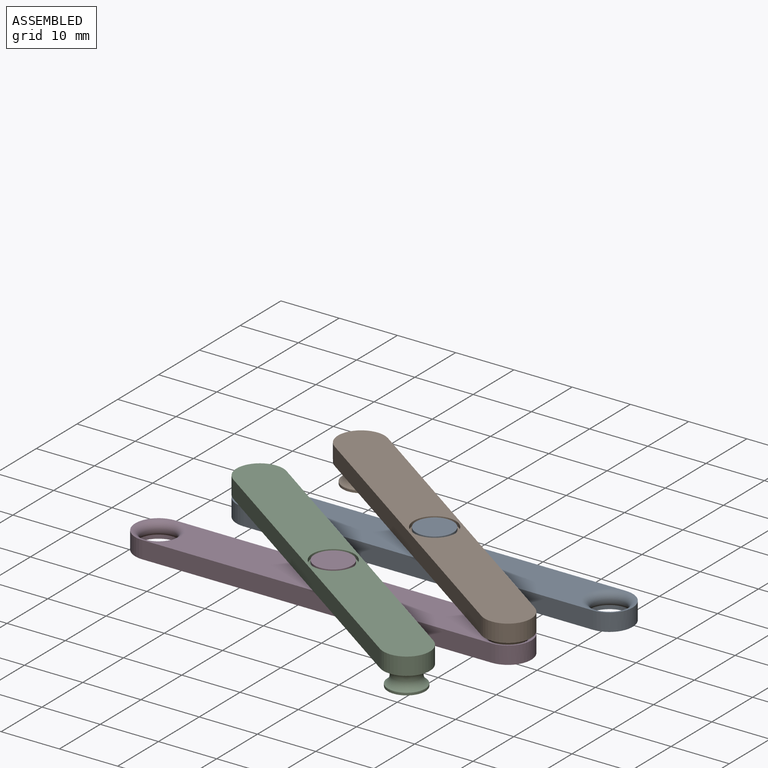
[diagram: assembled view]
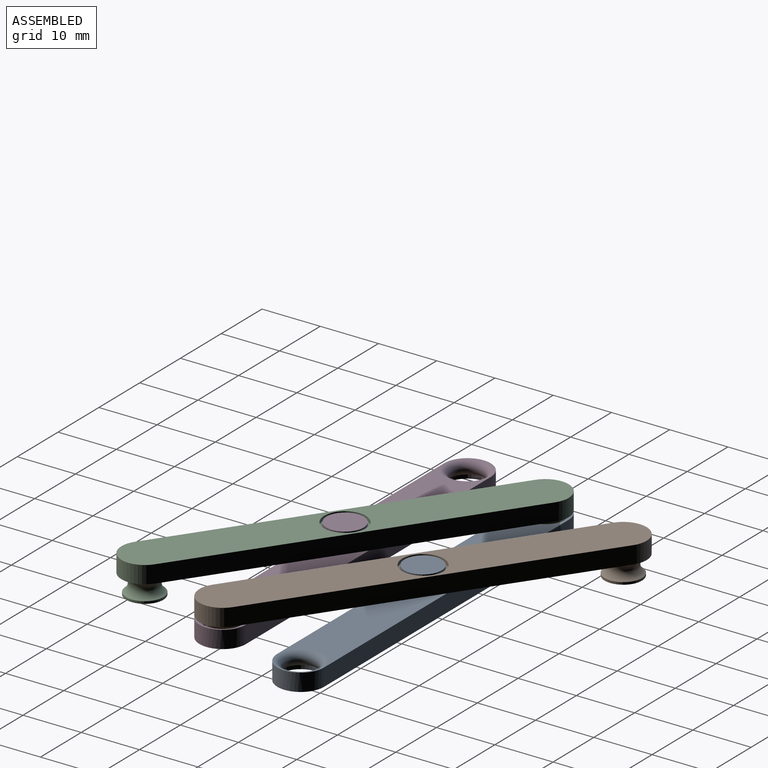
[diagram: assembled view, second angle]
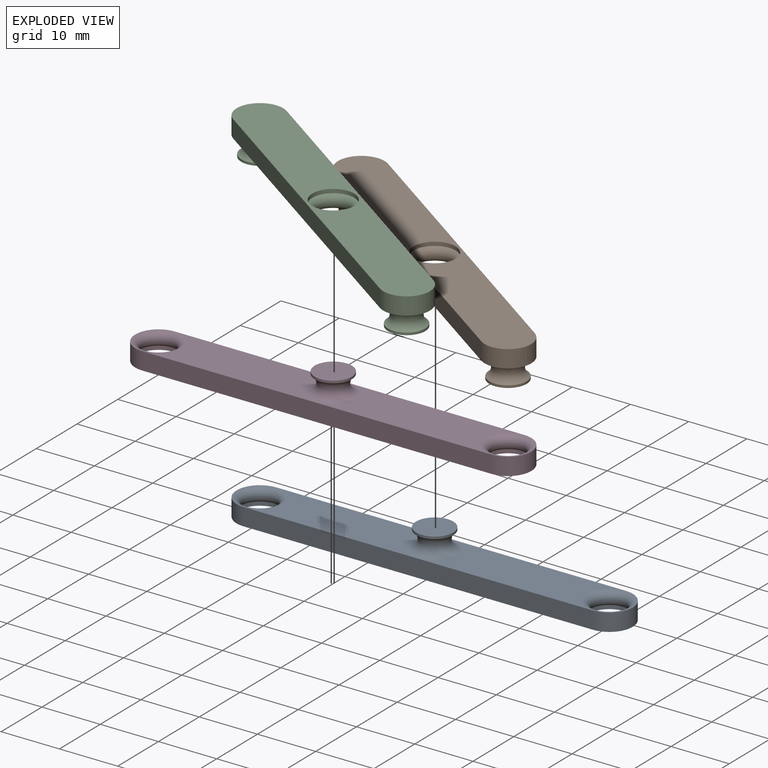
[diagram: exploded view]
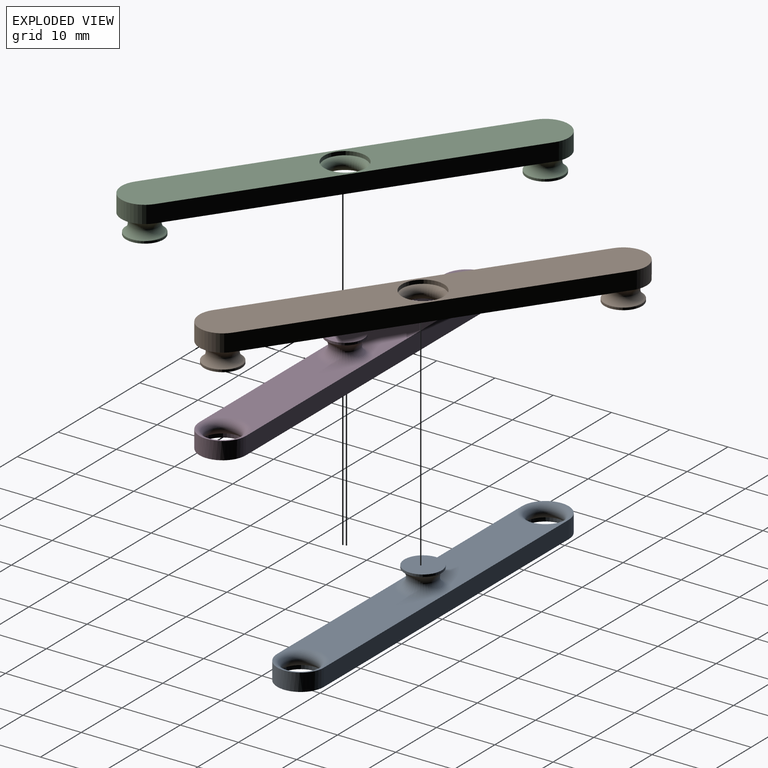
[diagram: exploded view, second angle]
ASSEMBLY  parts=4 mates=4
PART A: 14 faces, bbox 69.6x11.1x6.4 mm
  f0: cylinder r=4mm len=8mm, axis (0,0,1), area 37.7mm2, adj f2,f3,f4,f6
  f1: cylinder r=3.6mm len=7.2mm, axis (0,0,1), area 14.8mm2, adj f2,f3
  f2: torus R=4mm, axis (0,0,1), area 67.2mm2, adj f0,f1,f5
  f3: plane 68x8mm, normal (0,0,-1), area 448.8mm2, adj f0,f1,f4,f6,f11,f13
  f4: plane 60x3mm, normal (0,1,0), area 180mm2, adj f0,f3,f5,f10,f13
  f5: plane 30x8mm, normal (0,0,1), area 189.7mm2, adj f2,f4,f6,f7
  f6: plane 60x3mm, normal (0,-1,0), area 180mm2, adj f0,f3,f5,f10,f13
  f7: torus R=4mm, axis (0,0,-1), area 75.5mm2, adj f5,f8,f10
  f8: cylinder r=3.2mm len=6.4mm, axis (0,0,-1), area 8mm2, adj f7,f9
  f9: plane 6.4x6.4mm, normal (0,0,1), area 32.2mm2, adj f8
  f10: plane 30x8mm, normal (0,0,1), area 189.7mm2, adj f4,f6,f7,f12
  f11: cylinder r=3.6mm len=7.2mm, axis (0,0,1), area 14.8mm2, adj f3,f12
  f12: torus R=4mm, axis (0,0,1), area 67.2mm2, adj f10,f11,f13
  f13: cylinder r=4mm len=8mm, axis (0,0,1), area 37.7mm2, adj f3,f4,f6,f12
PART B: 15 faces, bbox 69.9x11.1x6.4 mm
  f0: torus R=4mm, axis (0,0,1), area 75.5mm2, adj f1,f4,f6
  f1: cylinder r=3.2mm len=6.4mm, axis (0,0,1), area 8mm2, adj f0,f2
  f2: plane 6.4x6.4mm, normal (0,0,-1), area 32.2mm2, adj f1
  f3: plane 68x8mm, normal (0,0,1), area 489.6mm2, adj f4,f5,f7,f8,f11
  f4: cylinder r=4mm len=8mm, axis (0,0,1), area 37.7mm2, adj f0,f3,f5,f7
  f5: plane 60x3mm, normal (0,1,0), area 180mm2, adj f3,f4,f6,f10,f11
  f6: plane 30x8mm, normal (0,0,-1), area 189.7mm2, adj f0,f5,f7,f9
  f7: plane 60x3mm, normal (0,-1,0), area 180mm2, adj f3,f4,f6,f10,f11
  f8: cylinder r=3.6mm len=7.2mm, axis (0,0,-1), area 14.8mm2, adj f3,f9
  f9: torus R=4mm, axis (0,0,-1), area 67.2mm2, adj f6,f8,f10
  f10: plane 30x8mm, normal (0,0,-1), area 189.7mm2, adj f5,f7,f9,f12
  f11: cylinder r=4mm len=8mm, axis (0,0,1), area 37.7mm2, adj f3,f5,f7,f12
  f12: torus R=4mm, axis (0,0,1), area 75.5mm2, adj f10,f11,f13
  f13: cylinder r=3.2mm len=6.4mm, axis (0,0,1), area 8mm2, adj f12,f14
  f14: plane 6.4x6.4mm, normal (0,0,-1), area 32.2mm2, adj f13
PART C: same geometry as B
PART D: same geometry as A
PLACE A t=(-9.5,7.02,-7.22)mm fixed
PLACE B rot(axis=(0,0,1),145.1deg) t=(45.11,-10.14,-7.22)mm
PLACE C rot(axis=(0,0,1),145.1deg) t=(39.71,-27.3,-7.22)mm
PLACE D t=(-14.89,-10.14,-7.22)mm
MATE revolute B.f0 <-> D.f11  axis (0,0,-1) through (45.11,-10.14,-10.42)mm
MATE revolute D.f7 <-> C.f8  axis (0,0,1) through (15.11,-10.14,-4.02)mm
MATE revolute C.f11 <-> A.f0  axis (0,0,-1) through (-9.5,7.02,-10.42)mm
MATE revolute A.f7 <-> B.f8  axis (0,0,1) through (20.5,7.02,-4.02)mm
